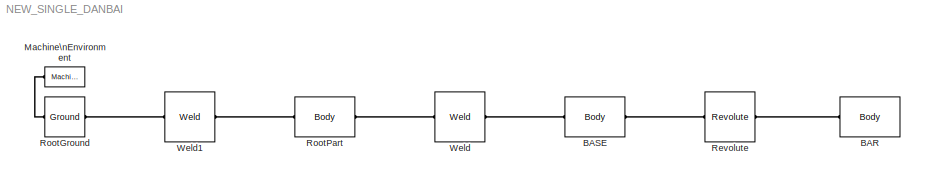
MODEL NEW_SINGLE_DANBAI
KIND model
BLOCK [Reference] BAR  REF=mblibv1/Bodies/Body
  AttachedToCS = CS1
  BodyColor = [0;1;0]
  BodyColorSelMode = COLORPALETTE
  CG = Right$CG$[135.181 57.5 -215.507]$WORLD$WORLD$mm$[0 -0.79224 -0.610209;1 0 0;0 -0.610209 0.79224]$3x3 Transform$rad$WORLD$false$40::CG(AUTOGEN)
  CGPos = [135.181 57.5 -215.507]
  CGRot = [0 -0.79224 -0.610209;1 0 0;0 -0.610209 0.79224]
  CS0Pos = []
  CS0Rot = []
  CS10Pos = []
  CS10Rot = []
  CS11Pos = []
  CS11Rot = []
  CS12Pos = []
  CS12Rot = []
  CS13Pos = []
  CS13Rot = []
  CS14Pos = []
  CS14Rot = []
  CS15Pos = []
  CS15Rot = []
  CS16Pos = []
  CS16Rot = []
  CS17Pos = []
  CS17Rot = []
  CS18Pos = []
  CS18Rot = []
  CS19Pos = []
  CS19Rot = []
  CS1Pos = [149.501 57.5 -234.099]
  CS1Rot = [0 -0.79224 -0.610209;1 0 0;0 -0.610209 0.79224]
  CS20Pos = []
  CS20Rot = []
  CS2Pos = [0 50 -40]
  CS2Rot = [1 0 0;0 1 0;0 0 1]
  CS3Pos = []
  CS3Rot = []
  CS4Pos = []
  CS4Rot = []
  CS5Pos = []
  CS5Rot = []
  CS6Pos = []
  CS6Rot = []
  CS7Pos = []
  CS7Rot = []
  CS8Pos = []
  CS8Rot = []
  CS9Pos = []
  CS9Rot = []
  ClassName = Body
  Density = 1
  DensityUnits = kg/m^3
  DensityUse = false
  DialogClass = MechanicalBodyBlock
  DialogController = MECH.DynMechDlgSource
  GraphicsFileName = BAR_prt.stl
  GraphicsMode = GFXFILE
  Inertia = [7.43264e+006,0,0;0,7.41741e+006,0;0,0,202136]
  InertiaUnits = kg*m^2
  LConnTagsString = CS2
  LeftPortType = workingframe
  Mass = 6.65597e+008
  MassUnits = kg
  PMImportedID = 40
  PhysicalDomain = mechanical
  Ports = [0, 0, 0, 0, 0, 1]
  RightPortType = workingframe
  SID = 2
  Shape = Cylinder
  ShapeDims = [1 1]
  ShapeUnits = m
  ShapeUse = false
  SourceBlock = mblibv1/Bodies/Body
  SourceType = Body
  SubClassName = Unknown
  UpdateFromCAD = on
  WorkingFrames = Right$CS1$[149.501 57.5 -234.099]$WORLD$WORLD$mm$[0 -0.79224 -0.610209;1 0 0;0 -0.610209 0.79224]$3x3 Transform$rad$WORLD$false$40::CS1(AUTOGEN)#Left$CS2$[0 50 -40]$WORLD$WORLD$mm$[1 0 0;0 1 0;0 0 1]$3x3 Transform$rad$WORLD$true$39:-:40::40(AUTOGEN)
BLOCK [Reference] BASE  REF=mblibv1/Bodies/Body
  AttachedToCS = CS1
  BodyColor = [0.11;0.11;0.11]
  BodyColorSelMode = COLORPALETTE
  CG = Right$CG$[0 11.7943 -10.863]$WORLD$WORLD$mm$[1 0 0;0 1 0;0 0 1]$3x3 Transform$rad$WORLD$false$39::CG(AUTOGEN)
  CGPos = [0 11.7943 -10.863]
  CGRot = [1 0 0;0 1 0;0 0 1]
  CS0Pos = []
  CS0Rot = []
  CS10Pos = []
  CS10Rot = []
  CS11Pos = []
  CS11Rot = []
  CS12Pos = []
  CS12Rot = []
  CS13Pos = []
  CS13Rot = []
  CS14Pos = []
  CS14Rot = []
  CS15Pos = []
  CS15Rot = []
  CS16Pos = []
  CS16Rot = []
  CS17Pos = []
  CS17Rot = []
  CS18Pos = []
  CS18Rot = []
  CS19Pos = []
  CS19Rot = []
  CS1Pos = [0 0 0]
  CS1Rot = [1 0 0;0 1 0;0 0 1]
  CS20Pos = []
  CS20Rot = []
  CS2Pos = [0 50 -40]
  CS2Rot = [1 0 0;0 1 0;0 0 1]
  CS3Pos = [95.4735 44.0746 -155.396]
  CS3Rot = [1 0 0;0 1 0;0 0 1]
  CS4Pos = []
  CS4Rot = []
  CS5Pos = []
  CS5Rot = []
  CS6Pos = []
  CS6Rot = []
  CS7Pos = []
  CS7Rot = []
  CS8Pos = []
  CS8Rot = []
  CS9Pos = []
  CS9Rot = []
  ClassName = Body
  Density = 1
  DensityUnits = kg/m^3
  DensityUse = false
  DialogClass = MechanicalBodyBlock
  DialogController = MECH.DynMechDlgSource
  GraphicsFileName = BASE_prt.stl
  GraphicsMode = GFXFILE
  Inertia = [384703,0,0;0,352039,92335.7;0,92335.7,504054]
  InertiaUnits = kg*m^2
  LConnTagsString = CS3
  LeftPortType = workingframe
  Mass = 2.76822e+008
  MassUnits = kg
  PMImportedID = 39
  PhysicalDomain = mechanical
  Ports = [0, 0, 0, 0, 0, 1, 1]
  RConnTagsString = CS2
  RightPortType = workingframe
  SID = 1
  Shape = Cylinder
  ShapeDims = [1 1]
  ShapeUnits = m
  ShapeUse = false
  SourceBlock = mblibv1/Bodies/Body
  SourceType = Body
  SubClassName = Unknown
  UpdateFromCAD = on
  WorkingFrames = Right$CS1$[0 0 0]$WORLD$WORLD$mm$[1 0 0;0 1 0;0 0 1]$3x3 Transform$rad$WORLD$false$39::CS1(AUTOGEN)#Right$CS2$[0 50 -40]$WORLD$WORLD$mm$[1 0 0;0 1 0;0 0 1]$3x3 Transform$rad$WORLD$true$39:-:40::39(AUTOGEN)#Left$CS3$[95.4735 44.0746 -155.396]$WORLD$WORLD$mm$[1 0 0;0 1 0;0 0 1]$3x3 Transform$rad$WORLD$true$:-:39::39(AUTOGEN)
BLOCK [Reference] Machine\nEnvironment  REF=mblibv1/Bodies/Machine\nEnvironment
  AnalysisType = Forward dynamics
  AngularAssemblyTolerance = 1e-3
  AngularAssemblyToleranceUnits = rad
  BodyColorSelMode = Use model default
  BodyVisualizationType = Use model default body geometries
  ClassName = Environment
  ConstraintAbsTolerance = 1e-4
  ConstraintRelTolerance = 1e-4
  ConstraintSolverType = Stabilizing
  DefaultBodyColor = [1 0 0]
  DialogController = MECH.DialogSource
  DialogTemplateClass = MECH.MachineEnvironment
  Dimensionality = Auto-detect
  FunctionWithSeparateData = off
  Gravity = [0 -9.81 0]
  GravityAsSignal = off
  GravityUnits = m/s^2
  LinearAssemblyTolerance = 1e-3
  LinearAssemblyToleranceUnits = m
  PerturbationSize = 1e-5
  PhysicalDomain = Mechanical
  PortType = env
  Ports = [0, 0, 0, 0, 0, 0, 1]
  RTWMemSecDataConstants = Inherit from model
  RTWMemSecDataInternal = Inherit from model
  RTWMemSecDataParameters = Inherit from model
  RTWMemSecFuncExecute = Inherit from model
  RTWMemSecFuncInitTerm = Inherit from model
  RedundancyAnalysisTolerance = 1e-14
  RedundancyAnalysisToleranceType = Automatically select tolerance
  SID = 8
  ShowPortLabels = FromPortIcon
  SourceBlock = mblibv1/Bodies/Machine\nEnvironment
  SourceType = Machine Environment
  StatePerturbationType = Fixed
  SyncWhenCopied = off
  SystemSampleTime = -1
  UseRobustSingularityHandling = off
  VisualizeMachine = on
BLOCK [Reference] Revolute  REF=mblibv1/Joints/Revolute
  ClassName = Joint
  CutJoint = off
  DialogClass = JointBlock
  DialogController = MECH.DynMechDlgSource
  LConnTagsString = __newl0
  LeftPortType = blob
  MarkAsCut = off
  NumSAPorts = 0
  PMImportedID = 39:-:40
  PhysicalDomain = mechanical
  Ports = [0, 0, 0, 0, 0, 1, 1]
  PrimitiveProps = R1$WORLD$[0,-1,0]$revolute
  Primitives = prismatic
  R1Axis = [0,-1,0]
  RConnTagsString = __newr0
  RightPortType = blob
  SID = 5
  SourceBlock = mblibv1/Joints/Revolute
  SourceType = Revolute
  SubClassName = Unknown
  UpdateFromCAD = on
BLOCK [Reference] RootGround  REF=mblibv1/Bodies/Ground
  ClassName = Ground
  CoordPosition = [95.4735,44.0746,-155.396]
  CoordPositionUnits = mm
  DialogClass = GroundBlock
  DialogController = MECH.DynMechDlgSource
  FunctionWithSeparateData = off
  LeftPortType = env
  MachineId = [0 0]
  PMImportedID = RootGround
  PhysicalDomain = Mechanical
  Ports = [0, 0, 0, 0, 0, 1, 1]
  RTWMemSecDataConstants = Inherit from model
  RTWMemSecDataInternal = Inherit from model
  RTWMemSecDataParameters = Inherit from model
  RTWMemSecFuncExecute = Inherit from model
  RTWMemSecFuncInitTerm = Inherit from model
  RightPortType = workingframe
  SID = 4
  ShowEnvPort = on
  ShowPortLabels = FromPortIcon
  SourceBlock = mblibv1/Bodies/Ground
  SourceType = Ground
  StateVectorMgrId = -1
  SystemSampleTime = -1
  UpdateFromCAD = on
  UserData = DataTag0
  UserDataPersistent = on
BLOCK [Reference] RootPart  REF=mblibv1/Bodies/Body
  AttachedToCS = CS1
  BodyColor = [1 0 0]
  BodyColorSelMode = MACHINE_DEFAULT
  CG = Right$CG$[95.4735 44.0746 -155.396]$WORLD$WORLD$mm$[1 0 0;0 1 0;0 0 1]$3x3 Transform$rad$WORLD$false$RootPart::CG(AUTOGEN)
  CGPos = [95.4735 44.0746 -155.396]
  CGRot = [1 0 0;0 1 0;0 0 1]
  CS0Pos = []
  CS0Rot = []
  CS10Pos = []
  CS10Rot = []
  CS11Pos = []
  CS11Rot = []
  CS12Pos = []
  CS12Rot = []
  CS13Pos = []
  CS13Rot = []
  CS14Pos = []
  CS14Rot = []
  CS15Pos = []
  CS15Rot = []
  CS16Pos = []
  CS16Rot = []
  CS17Pos = []
  CS17Rot = []
  CS18Pos = []
  CS18Rot = []
  CS19Pos = []
  CS19Rot = []
  CS1Pos = [0 0 0]
  CS1Rot = [1 0 0;0 1 0;0 0 1]
  CS20Pos = []
  CS20Rot = []
  CS2Pos = [95.4735 44.0746 -155.396]
  CS2Rot = [1 0 0;0 1 0;0 0 1]
  CS3Pos = [95.4735 44.0746 -155.396]
  CS3Rot = [1 0 0;0 1 0;0 0 1]
  CS4Pos = []
  CS4Rot = []
  CS5Pos = []
  CS5Rot = []
  CS6Pos = []
  CS6Rot = []
  CS7Pos = []
  CS7Rot = []
  CS8Pos = []
  CS8Rot = []
  CS9Pos = []
  CS9Rot = []
  ClassName = Body
  Density = 1
  DensityUnits = kg/m^3
  DensityUse = false
  DialogClass = MechanicalBodyBlock
  DialogController = MECH.DynMechDlgSource
  GraphicsMode = MACHINE_DEFAULT
  Inertia = [0,0,0;0,0,0;0,0,0]
  InertiaUnits = kg*m^2
  LConnTagsString = CS3
  LeftPortType = workingframe
  Mass = 0
  MassUnits = kg
  PMImportedID = RootPart
  PhysicalDomain = mechanical
  Ports = [0, 0, 0, 0, 0, 1, 1]
  RConnTagsString = CS2
  RightPortType = workingframe
  SID = 3
  Shape = Cylinder
  ShapeDims = [1 1]
  ShapeUnits = m
  ShapeUse = false
  SourceBlock = mblibv1/Bodies/Body
  SourceType = Body
  SubClassName = Unknown
  UpdateFromCAD = on
  WorkingFrames = Right$CS1$[0 0 0]$WORLD$WORLD$mm$[1 0 0;0 1 0;0 0 1]$3x3 Transform$rad$WORLD$false$RootPart::CS1(AUTOGEN)#Right$CS2$[95.4735 44.0746 -155.396]$WORLD$WORLD$mm$[1 0 0;0 1 0;0 0 1]$3x3 Transform$rad$WORLD$true$:-:39::RootPart(AUTOGEN)#Left$CS3$[95.4735 44.0746 -155.396]$WORLD$WORLD$mm$[1 0 0;0 1 0;0 0 1]$3x3 Transform$rad$WORLD$true$RootGround:-:RootPart::RootPart(AUTOGEN)
BLOCK [Reference] Weld  REF=mblibv1/Joints/Weld
  ClassName = Joint
  CutJoint = off
  DialogClass = JointBlock
  DialogController = MECH.DynMechDlgSource
  LConnTagsString = __newl0
  LeftPortType = blob
  MarkAsCut = off
  NumSAPorts = 0
  PMImportedID = :-:39
  PhysicalDomain = mechanical
  Ports = [0, 0, 0, 0, 0, 1, 1]
  PrimitiveProps = W$WORLD$[0.57735,0.57735,0.57735]$weld
  Primitives = weld
  RConnTagsString = __newr0
  RightPortType = blob
  SID = 6
  SourceBlock = mblibv1/Joints/Weld
  SourceType = Weld
  SubClassName = Unknown
  UpdateFromCAD = on
  WAxis = [0.57735,0.57735,0.57735]
BLOCK [Reference] Weld1  REF=mblibv1/Joints/Weld
  ClassName = Joint
  CutJoint = off
  DialogClass = JointBlock
  DialogController = MECH.DynMechDlgSource
  LConnTagsString = __newl0
  LeftPortType = blob
  MarkAsCut = off
  NumSAPorts = 0
  PMImportedID = RootGround:-:RootPart
  PhysicalDomain = mechanical
  Ports = [0, 0, 0, 0, 0, 1, 1]
  PrimitiveProps = W$WORLD$[0.57735,0.57735,0.57735]$weld
  Primitives = weld
  RConnTagsString = __newr0
  RightPortType = blob
  SID = 7
  SourceBlock = mblibv1/Joints/Weld
  SourceType = Weld
  SubClassName = Unknown
  UpdateFromCAD = on
  WAxis = [0.57735,0.57735,0.57735]
PLINE BAR:LConn1 -- Revolute:RConn1
PLINE BASE:LConn1 -- Weld:RConn1
PLINE BASE:RConn1 -- Revolute:LConn1
PLINE Machine\nEnvironment:RConn1 -- RootGround:LConn1
PLINE RootGround:RConn1 -- Weld1:LConn1
PLINE RootPart:LConn1 -- Weld1:RConn1
PLINE RootPart:RConn1 -- Weld:LConn1
